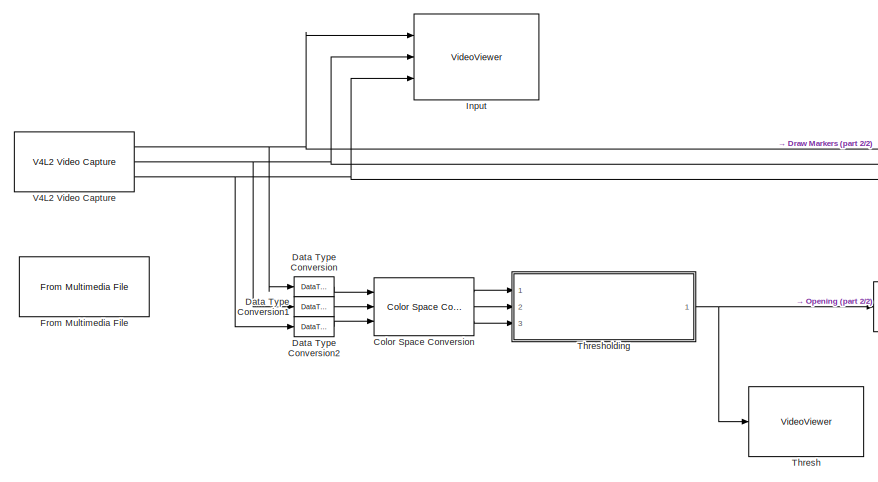
[diagram: root canvas - part 1/2, middle left region]
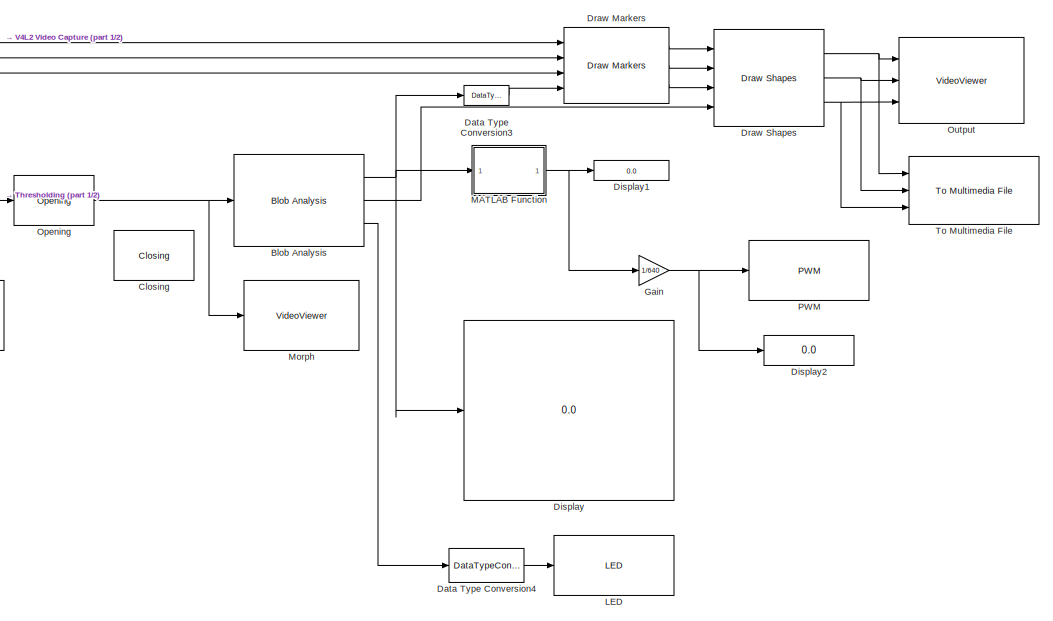
[diagram: root canvas - part 2/2, right side, full height]
MODEL slx_2d7d6da406b2
KIND model
CONFIG AbsTol = auto
CONFIG EnableMultiTasking = on
CONFIG FixedStep = auto
CONFIG MaxStep = auto
CONFIG MinStep = auto
CONFIG RelTol = 1e-3
CONFIG SampleTimeConstraint = Unconstrained
CONFIG Solver = FixedStepAuto
CONFIG SolverName = FixedStepAuto
CONFIG StartTime = 0.0
CONFIG StopTime = inf
BLOCK [Reference] Blob Analysis  REF=visionstatistics/Blob Analysis
  Ports = [1, 3]
  SourceBlock = visionstatistics/Blob Analysis
  SourceProductBaseCode = VP
  SourceProductName = Computer Vision System Toolbox
  SourceType = Blob Analysis
  Tag = vipblks_row_conv
BLOCK [Reference] Closing  REF=visionmorphops/Closing
  Commented = on
  Ports = [1, 1]
  SourceBlock = visionmorphops/Closing
  SourceProductBaseCode = VP
  SourceProductName = Computer Vision System Toolbox
  SourceType = Closing
BLOCK [Reference] Color Space Conversion  REF=visionconversions/Color Space
 Conversion
  Ports = [3, 3]
  SourceBlock = visionconversions/Color Space\n Conversion
  SourceProductBaseCode = VP
  SourceProductName = Computer Vision System Toolbox
  SourceType = Color Space Conversion
BLOCK [DataTypeConversion] Data Type Conversion
  OutDataTypeStr = double
  RndMeth = Floor
  SaturateOnIntegerOverflow = off
BLOCK [DataTypeConversion] Data Type Conversion1
  OutDataTypeStr = double
  RndMeth = Floor
  SaturateOnIntegerOverflow = off
BLOCK [DataTypeConversion] Data Type Conversion2
  OutDataTypeStr = double
  RndMeth = Floor
  SaturateOnIntegerOverflow = off
BLOCK [DataTypeConversion] Data Type Conversion3
  Commented = on
  OutDataTypeStr = uint16
  RndMeth = Floor
  SaturateOnIntegerOverflow = off
BLOCK [DataTypeConversion] Data Type Conversion4
  OutDataTypeStr = boolean
  RndMeth = Floor
  SaturateOnIntegerOverflow = off
BLOCK [Display] Display
  Decimation = 1
  Ports = [1]
BLOCK [Display] Display1
  Decimation = 1
  Ports = [1]
BLOCK [Display] Display2
  Decimation = 1
  Ports = [1]
BLOCK [Reference] Draw Markers  REF=visiontextngfix/Draw Markers
  Commented = on
  Ports = [4, 3]
  SourceBlock = visiontextngfix/Draw Markers
  SourceProductBaseCode = VP
  SourceProductName = Computer Vision System Toolbox
  SourceType = Draw Markers
BLOCK [Reference] Draw Shapes  REF=visiontextngfix/Draw Shapes
  Commented = on
  Ports = [4, 3]
  SourceBlock = visiontextngfix/Draw Shapes
  SourceProductBaseCode = VP
  SourceProductName = Computer Vision System Toolbox
  SourceType = Draw Shapes
BLOCK [Reference] From Multimedia File  REF=dspvision/From Multimedia File
  Commented = on
  Ports = [0, 3]
  SourceBlock = dspvision/From Multimedia File
  SourceProductBaseCode = VP
  SourceProductName = Computer Vision System Toolbox
  SourceType = From Multimedia File
BLOCK [Gain] Gain
  Gain = 1/640
  OutDataTypeStr = Inherit: Inherit via internal rule
  ParamDataTypeStr = Inherit: Inherit via internal rule
  SaturateOnIntegerOverflow = off
BLOCK [VideoViewer] Input
  Commented = on
  FigPos = [1 736 1366 636]
  Ports = [3]
  ScopeSpecificationString = vipscopes.VideoViewerScopeCfg('CurrentConfiguration', extmgr.ConfigurationSet(extmgr.Configuration('Core','General UI',true),extmgr.Configuration('Core','Source UI',true),extmgr.Configuration('Sources','WiredSimulink',true),extmgr.Configuration('Visuals','Video',true),extmgr.Configuration('Tools','Image Navigation Tools',true,'Magnification',0.5),extmgr.Configuration('Tools','Image Tool',true),ext...<+93ch>
  colormapValue = gray(256)
  imagePorts = separate color signals
BLOCK [Reference] LED  REF=embdlinuxlib/LED
  Ports = [1]
  SourceBlock = embdlinuxlib/LED
  SourceProductBaseCode = RASPPI
  SourceProductName = Simulink Support Package for Raspberry Pi Hardware
  SourceType = LED Write
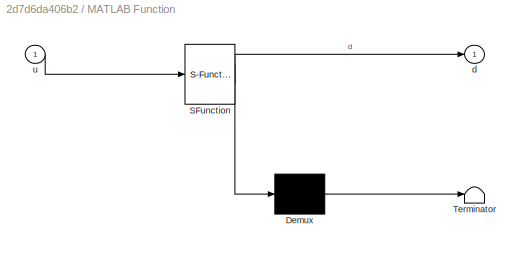
BLOCK [SubSystem] MATLAB Function
  ErrorFcn = Stateflow.Translate.translate
  PermitHierarchicalResolution = ExplicitOnly
  Ports = [1, 1]
  RequestExecContextInheritance = off
  SFBlockType = MATLAB Function
  TreatAsAtomicUnit = on
BLOCK [Demux] MATLAB Function/ Demux 
  Outputs = 1
  Ports = [1, 1]
BLOCK [S-Function] MATLAB Function/ SFunction 
  EnableBusSupport = on
  FunctionName = sf_sfun
  PortCounts = [1 2]
  Ports = [1, 2]
  SFcnIsStateOwnerBlock = off
  SFunctionDeploymentMode = off
  Tag = Stateflow S-Function vidcap_video 2
BLOCK [Terminator] MATLAB Function/ Terminator 
BLOCK [Outport] MATLAB Function/d
  IconDisplay = Port number
BLOCK [Inport] MATLAB Function/u
  IconDisplay = Port number
BLOCK [VideoViewer] Morph
  Commented = on
  FigPos = [560 735 796 627]
  OpenAtMdlStart = off
  Ports = [1]
  ScopeSpecificationString = vipscopes.VideoViewerScopeCfg('CurrentConfiguration', extmgr.ConfigurationSet(extmgr.Configuration('Core','General UI',true),extmgr.Configuration('Core','Source UI',true),extmgr.Configuration('Sources','WiredSimulink',true),extmgr.Configuration('Visuals','Video',true),extmgr.Configuration('Tools','Image Navigation Tools',true,'Magnification',0.666666666666667),extmgr.Configuration('Tools','Image T...<+108ch>
  colormapValue = gray(256)
BLOCK [Reference] Opening  REF=visionmorphops/Opening
  Ports = [1, 1]
  SourceBlock = visionmorphops/Opening
  SourceProductBaseCode = VP
  SourceProductName = Computer Vision System Toolbox
  SourceType = Opening
BLOCK [VideoViewer] Output
  Commented = on
  FigPos = [-489 776 1366 636]
  Ports = [3]
  ScopeSpecificationString = vipscopes.VideoViewerScopeCfg('CurrentConfiguration', extmgr.ConfigurationSet(extmgr.Configuration('Core','General UI',true),extmgr.Configuration('Core','Source UI',true),extmgr.Configuration('Sources','WiredSimulink',true),extmgr.Configuration('Visuals','Video',true),extmgr.Configuration('Tools','Image Navigation Tools',true,'Magnification',0.666666666666667),extmgr.Configuration('Tools','Image T...<+110ch>
  colormapValue = gray(256)
  imagePorts = separate color signals
BLOCK [Reference] PWM  REF=raspberrypilib/PWM
  Ports = [1]
  SourceBlock = raspberrypilib/PWM
  SourceProductBaseCode = RASPPI
  SourceProductName = Simulink Support Package for Raspberry Pi Hardware
  SourceType = raspi.internal.PWMBlock
BLOCK [VideoViewer] Thresh
  Commented = on
  FigPos = [2 735 681 627]
  Ports = [1]
  ScopeSpecificationString = vipscopes.VideoViewerScopeCfg('CurrentConfiguration', extmgr.ConfigurationSet(extmgr.Configuration('Core','General UI',true),extmgr.Configuration('Core','Source UI',true),extmgr.Configuration('Sources','WiredSimulink',true),extmgr.Configuration('Visuals','Video',true),extmgr.Configuration('Tools','Image Navigation Tools',true,'Magnification',0.333333333333333),extmgr.Configuration('Tools','Image T...<+106ch>
  colormapValue = gray(256)
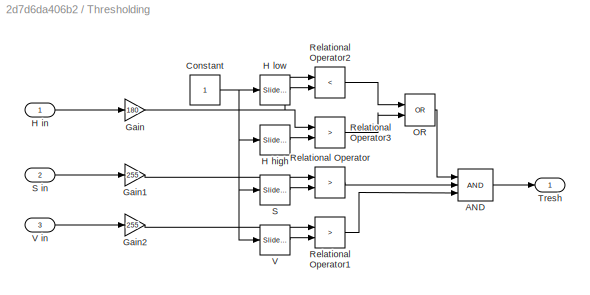
BLOCK [SubSystem] Thresholding
  Ports = [3, 1]
  RequestExecContextInheritance = off
BLOCK [Logic] Thresholding/AND
  AllPortsSameDT = off
  IconShape = distinctive
  Inputs = 3
  OutDataTypeStr = boolean
  Ports = [3, 1]
BLOCK [Constant] Thresholding/Constant
BLOCK [Gain] Thresholding/Gain
  Gain = 180
  OutDataTypeStr = Inherit: Inherit via internal rule
  ParamDataTypeStr = Inherit: Inherit via internal rule
  SaturateOnIntegerOverflow = off
BLOCK [Gain] Thresholding/Gain1
  Gain = 255
  OutDataTypeStr = Inherit: Inherit via internal rule
  ParamDataTypeStr = Inherit: Inherit via internal rule
  SaturateOnIntegerOverflow = off
BLOCK [Gain] Thresholding/Gain2
  Gain = 255
  OutDataTypeStr = Inherit: Inherit via internal rule
  ParamDataTypeStr = Inherit: Inherit via internal rule
  SaturateOnIntegerOverflow = off
BLOCK [Reference] Thresholding/H high  REF=simulink/Math
Operations/Slider
Gain
  Ports = [1, 1]
  SourceBlock = simulink/Math\nOperations/Slider\nGain
  SourceProductBaseCode = SL
  SourceProductName = Simulink
  SourceType = Slider Gain
BLOCK [Inport] Thresholding/H in
  IconDisplay = Port number
BLOCK [Reference] Thresholding/H low  REF=simulink/Math
Operations/Slider
Gain
  Ports = [1, 1]
  SourceBlock = simulink/Math\nOperations/Slider\nGain
  SourceProductBaseCode = SL
  SourceProductName = Simulink
  SourceType = Slider Gain
BLOCK [Logic] Thresholding/OR
  AllPortsSameDT = off
  IconShape = distinctive
  Operator = OR
  OutDataTypeStr = boolean
  Ports = [2, 1]
BLOCK [RelationalOperator] Thresholding/Relational Operator
  InputSameDT = off
  Operator = >
  OutDataTypeStr = boolean
  Ports = [2, 1]
  RndMeth = Simplest
BLOCK [RelationalOperator] Thresholding/Relational Operator1
  InputSameDT = off
  Operator = >
  OutDataTypeStr = boolean
  Ports = [2, 1]
  RndMeth = Simplest
BLOCK [RelationalOperator] Thresholding/Relational Operator2
  InputSameDT = off
  Operator = <
  OutDataTypeStr = boolean
  Ports = [2, 1]
  RndMeth = Simplest
BLOCK [RelationalOperator] Thresholding/Relational Operator3
  InputSameDT = off
  Operator = >
  OutDataTypeStr = boolean
  Ports = [2, 1]
  RndMeth = Simplest
BLOCK [Reference] Thresholding/S  REF=simulink/Math
Operations/Slider
Gain
  Ports = [1, 1]
  SourceBlock = simulink/Math\nOperations/Slider\nGain
  SourceProductBaseCode = SL
  SourceProductName = Simulink
  SourceType = Slider Gain
BLOCK [Inport] Thresholding/S in
  IconDisplay = Port number
  Port = 2
BLOCK [Outport] Thresholding/Tresh
  IconDisplay = Port number
BLOCK [Reference] Thresholding/V  REF=simulink/Math
Operations/Slider
Gain
  Ports = [1, 1]
  SourceBlock = simulink/Math\nOperations/Slider\nGain
  SourceProductBaseCode = SL
  SourceProductName = Simulink
  SourceType = Slider Gain
BLOCK [Inport] Thresholding/V in
  IconDisplay = Port number
  Port = 3
BLOCK [Reference] To Multimedia File  REF=dspvision/To Multimedia File
  Commented = on
  Ports = [3]
  SourceBlock = dspvision/To Multimedia File
  SourceProductBaseCode = VP
  SourceProductName = Computer Vision System Toolbox
  SourceType = To Multimedia File
BLOCK [Reference] V4L2 Video Capture  REF=embdlinuxlib/V4L2 Video Capture
  Ports = [0, 3]
  SourceBlock = embdlinuxlib/V4L2 Video Capture
  SourceProductBaseCode = RASPPI
  SourceProductName = Simulink Support Package for Raspberry Pi Hardware
  SourceType = V4L2 Video Capture
NET Blob Analysis:1 -> Data Type Conversion3:1, Display:1, MATLAB Function:1
LINE Blob Analysis:2 -> Draw Shapes:4
LINE Blob Analysis:3 -> Data Type Conversion4:1
LINE Color Space Conversion:1 -> Thresholding:1
LINE Color Space Conversion:2 -> Thresholding:2
LINE Color Space Conversion:3 -> Thresholding:3
LINE Data Type Conversion1:1 -> Color Space Conversion:2
LINE Data Type Conversion2:1 -> Color Space Conversion:3
LINE Data Type Conversion3:1 -> Draw Markers:4
LINE Data Type Conversion4:1 -> LED:1
LINE Data Type Conversion:1 -> Color Space Conversion:1
LINE Draw Markers:1 -> Draw Shapes:1
LINE Draw Markers:2 -> Draw Shapes:2
LINE Draw Markers:3 -> Draw Shapes:3
NET Draw Shapes:1 -> Output:1, To Multimedia File:1
NET Draw Shapes:2 -> Output:2, To Multimedia File:2
NET Draw Shapes:3 -> Output:3, To Multimedia File:3
NET Gain:1 -> Display2:1, PWM:1
NET MATLAB Function:1 -> Display1:1, Gain:1
NET Opening:1 -> Blob Analysis:1, Morph:1
LINE Thresholding/AND:1 -> Thresholding/Tresh:1
NET Thresholding/Constant:1 -> Thresholding/H high:1, Thresholding/H low:1, Thresholding/S:1, Thresholding/V:1
LINE Thresholding/Gain1:1 -> Thresholding/Relational Operator:1
LINE Thresholding/Gain2:1 -> Thresholding/Relational Operator1:1
NET Thresholding/Gain:1 -> Thresholding/Relational Operator2:1, Thresholding/Relational Operator3:1
LINE Thresholding/H high:1 -> Thresholding/Relational Operator3:2
LINE Thresholding/H in:1 -> Thresholding/Gain:1
LINE Thresholding/H low:1 -> Thresholding/Relational Operator2:2
LINE Thresholding/OR:1 -> Thresholding/AND:1
LINE Thresholding/Relational Operator1:1 -> Thresholding/AND:3
LINE Thresholding/Relational Operator2:1 -> Thresholding/OR:1
LINE Thresholding/Relational Operator3:1 -> Thresholding/OR:2
LINE Thresholding/Relational Operator:1 -> Thresholding/AND:2
LINE Thresholding/S in:1 -> Thresholding/Gain1:1
LINE Thresholding/S:1 -> Thresholding/Relational Operator:2
LINE Thresholding/V in:1 -> Thresholding/Gain2:1
LINE Thresholding/V:1 -> Thresholding/Relational Operator1:2
NET Thresholding:1 -> Opening:1, Thresh:1
NET V4L2 Video Capture:1 -> Data Type Conversion:1, Draw Markers:1, Input:1
NET V4L2 Video Capture:2 -> Data Type Conversion1:1, Draw Markers:2, Input:2
NET V4L2 Video Capture:3 -> Data Type Conversion2:1, Draw Markers:3, Input:3
note: NET lines group one-source signal fan-out (src -> all destinations, sorted); 1:1 wires keep LINE
CHART MATLAB Function states=1 transitions=1
  STATE_LABEL 'eML_blk_kernel()'
  STATE_LABEL 'SCRIPT:\nfunction d = dist(u)\ndistance = 0;\nrc = size(u);\nfor i=1:rc(1)-1\n    for k=i+1:rc(1)\n        if u(i,2) > 0 \n            if abs(u(i,1) - u(k,1)) < 50\n                distance = abs(u(k,2) - u(i,2));\n            end\n        end\n    end\nend\nd = distance;\n\n\n'
